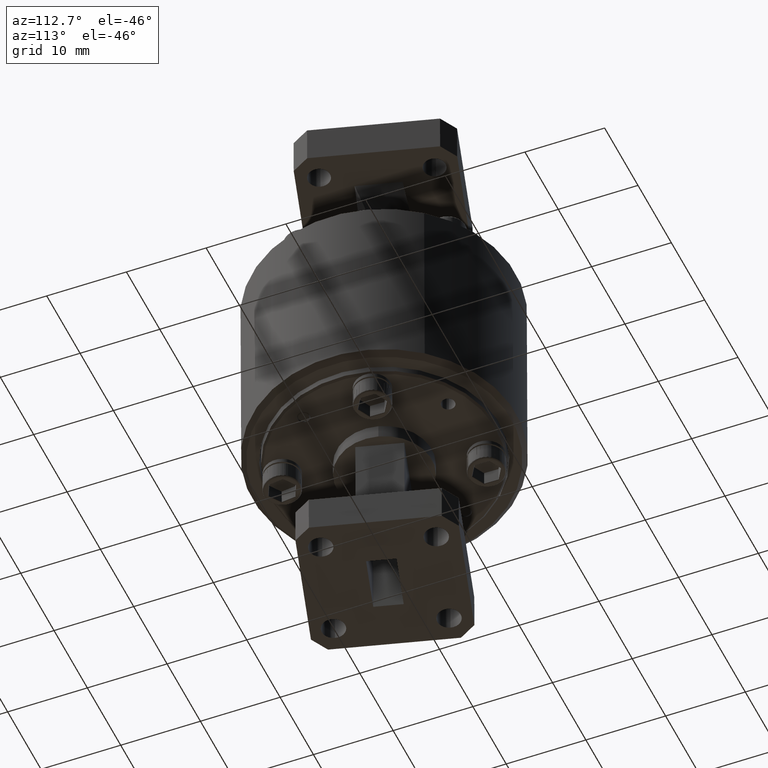
[diagram: clean part render]
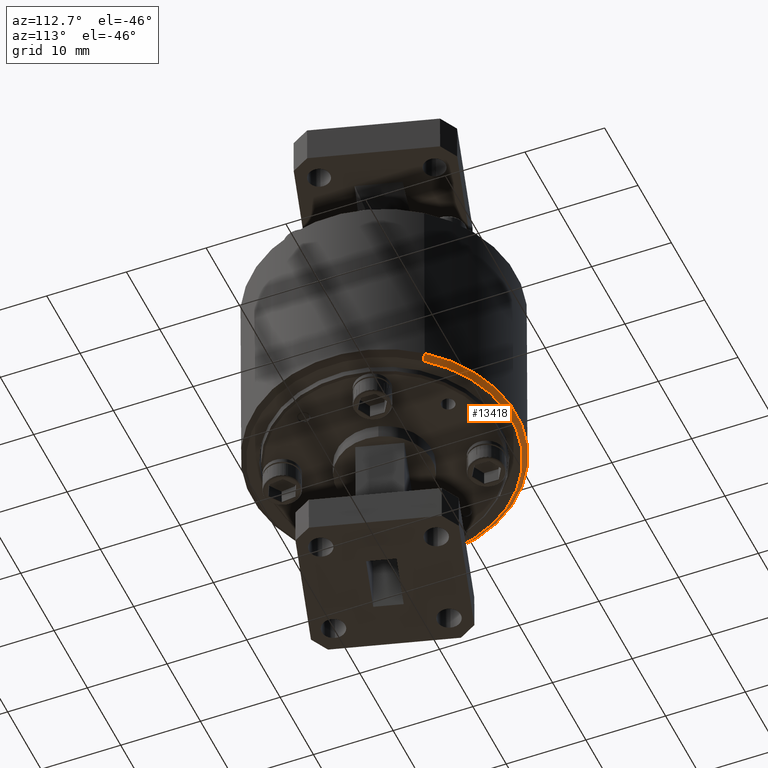
[diagram: same view with one face highlighted and labeled with its STEP entity id]
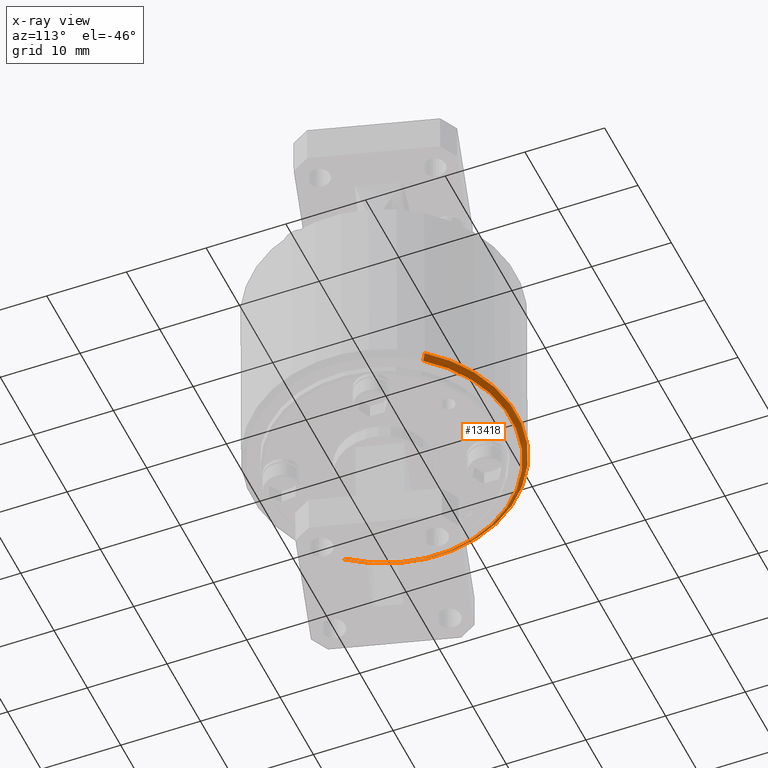
[diagram: x-ray of the same camera — body ghosted, the highlighted face saturated]
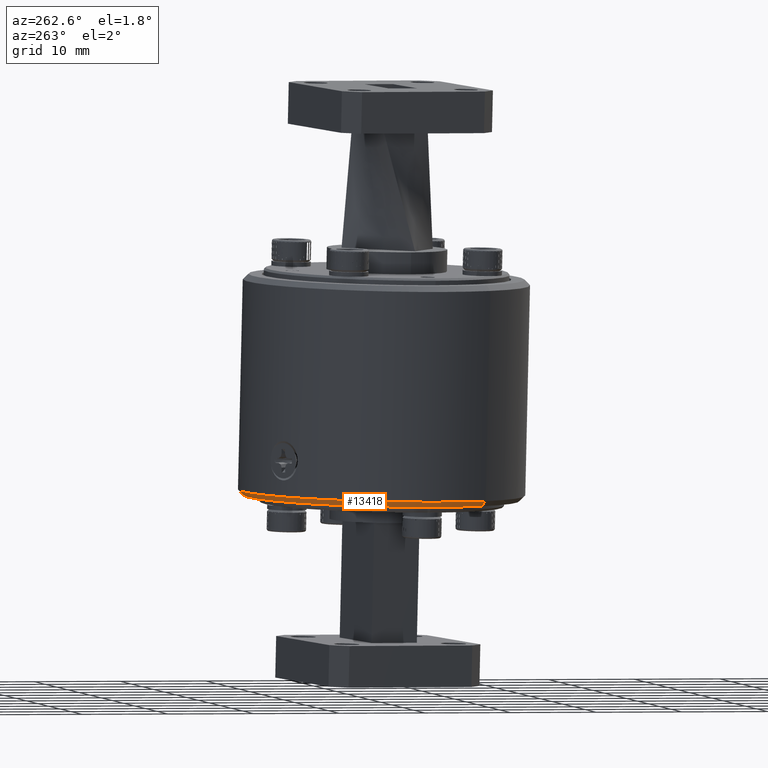
[diagram: same view with one face highlighted and labeled with its STEP entity id]
A machine part, auxiliary view. The second image highlights one B-rep face of the part: STEP entity #13418.
The next image is the same camera in x-ray: the body ghosted, the highlighted face saturated — about 5% of this face is hidden behind the body in this view.
A second angle (auxiliary view) of the same face is appended — the face is thin or edge-on in the first view.
In plain terms, the highlighted conical surface has half-angle 45 deg.
Its self-contained STEP definition (entity closure, byte-faithful):
#355 = CARTESIAN_POINT ( 'NONE',  ( -6.392564826940091600, -2.472010581375178700, -1.569877107470226000 ) ) ;
#573 = LINE ( 'NONE', #4808, #7099 ) ;
#1153 = VERTEX_POINT ( 'NONE', #355 ) ;
#1170 = AXIS2_PLACEMENT_3D ( 'NONE', #5712, #8474, #5589 ) ;
#1446 = DIRECTION ( 'NONE',  ( 0.7761129981655692200, 0.6293780999679398100, 0.03913848948537630000 ) ) ;
#3711 = EDGE_CURVE ( 'NONE', #20823, #16485, #573, .T. ) ;
#3850 = ORIENTED_EDGE ( 'NONE', *, *, #3711, .F. ) ;
#4757 = DIRECTION ( 'NONE',  ( -0.03562249074304803300, -0.01820857446431868900, 0.9991994225224706300 ) ) ;
#4808 = CARTESIAN_POINT ( 'NONE',  ( -5.414662449251474100, -1.678994175415574400, -1.520562610718651800 ) ) ;
#5589 = DIRECTION ( 'NONE',  ( -0.7761129981655692200, -0.6293780999679398100, -0.03913848948537630000 ) ) ;
#5712 = CARTESIAN_POINT ( 'NONE',  ( -5.903613638095782400, -2.075502378395376500, -1.545219859094438800 ) ) ;
#7099 = VECTOR ( 'NONE', #16270, 39.37007874015748900 ) ;
#7160 = CARTESIAN_POINT ( 'NONE',  ( -5.396150186565911600, -1.663714937277984000, -1.494604162918455700 ) ) ;
#7674 = CARTESIAN_POINT ( 'NONE',  ( -5.414662449251474100, -1.678994175415574400, -1.520562610718651800 ) ) ;
#8474 = DIRECTION ( 'NONE',  ( 0.03562249074304803300, 0.01820857446431868900, -0.9991994225224706300 ) ) ;
#10337 = DIRECTION ( 'NONE',  ( -0.03562249074304803300, -0.01820857446431868900, 0.9991994225224706300 ) ) ;
#11024 = DIRECTION ( 'NONE',  ( -0.7761129981655688900, -0.6293780999679403600, -0.03913848948537646000 ) ) ;
#11666 = VERTEX_POINT ( 'NONE', #32425 ) ;
#13418 = ADVANCED_FACE ( 'NONE', ( #25891 ), #21257, .T. ) ;
#14009 = AXIS2_PLACEMENT_3D ( 'NONE', #15926, #10337, #1446 ) ;
#14731 = EDGE_LOOP ( 'NONE', ( #36163, #24186, #25130, #3850 ) ) ;
#15926 = CARTESIAN_POINT ( 'NONE',  ( -5.903613638095782400, -2.075502378395376500, -1.545219859094438800 ) ) ;
#16270 = DIRECTION ( 'NONE',  ( 0.5236058592027322800, 0.4321621159381749400, 0.7342157787438292600 ) ) ;
#16485 = VERTEX_POINT ( 'NONE', #7160 ) ;
#20127 = EDGE_CURVE ( 'NONE', #1153, #20823, #38210, .T. ) ;
#20807 = AXIS2_PLACEMENT_3D ( 'NONE', #22977, #4757, #11024 ) ;
#20823 = VERTEX_POINT ( 'NONE', #7674 ) ;
#21257 = CONICAL_SURFACE ( 'NONE', #14009, 0.6300000000000001200, 0.7853981633974482800 ) ;
#22977 = CARTESIAN_POINT ( 'NONE',  ( -5.904504200364358200, -2.075957592756984700, -1.520239873531377100 ) ) ;
#22979 = DIRECTION ( 'NONE',  ( -0.5739836687370609700, -0.4579129288970947300, 0.6788655961028131600 ) ) ;
#24186 = ORIENTED_EDGE ( 'NONE', *, *, #34170, .T. ) ;
#25130 = ORIENTED_EDGE ( 'NONE', *, *, #27121, .F. ) ;
#25891 = FACE_OUTER_BOUND ( 'NONE', #14731, .T. ) ;
#26712 = CIRCLE ( 'NONE', #20807, 0.6550000000000002500 ) ;
#27121 = EDGE_CURVE ( 'NONE', #16485, #11666, #26712, .T. ) ;
#29552 = VECTOR ( 'NONE', #22979, 39.37007874015748900 ) ;
#31438 = LINE ( 'NONE', #31803, #29552 ) ;
#31803 = CARTESIAN_POINT ( 'NONE',  ( -6.392564826940091600, -2.472010581375178700, -1.569877107470226000 ) ) ;
#32425 = CARTESIAN_POINT ( 'NONE',  ( -6.412858214162806500, -2.488200248235985100, -1.545875584144298800 ) ) ;
#34170 = EDGE_CURVE ( 'NONE', #1153, #11666, #31438, .T. ) ;
#36163 = ORIENTED_EDGE ( 'NONE', *, *, #20127, .F. ) ;
#38210 = CIRCLE ( 'NONE', #1170, 0.6300000000000001200 ) ;